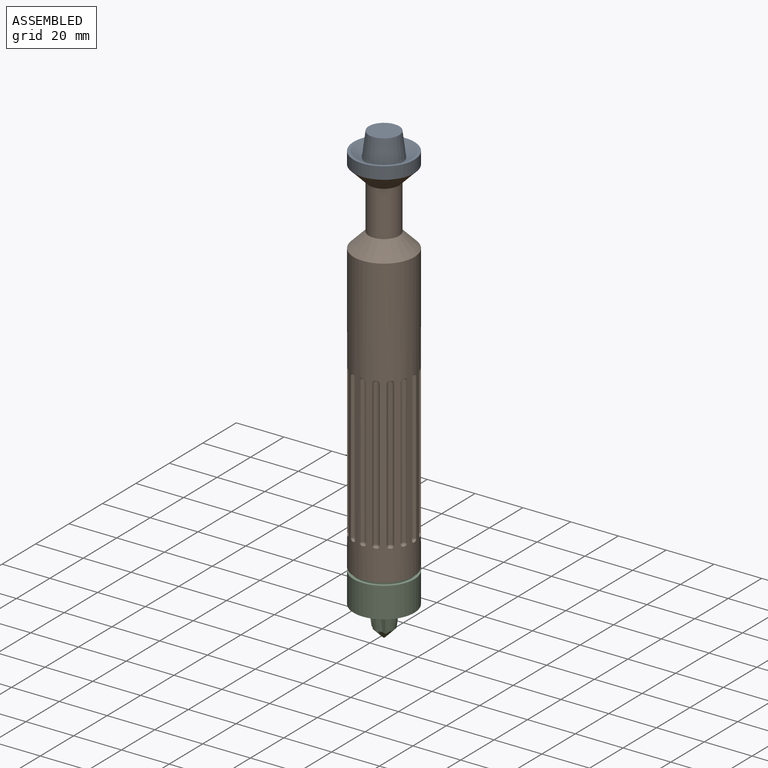
[diagram: assembled view]
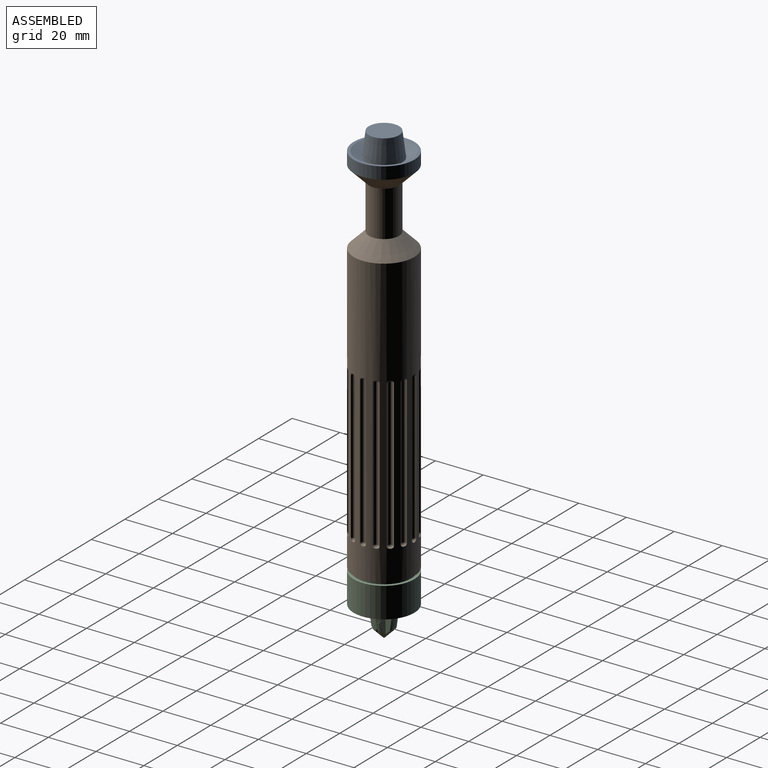
[diagram: assembled view, second angle]
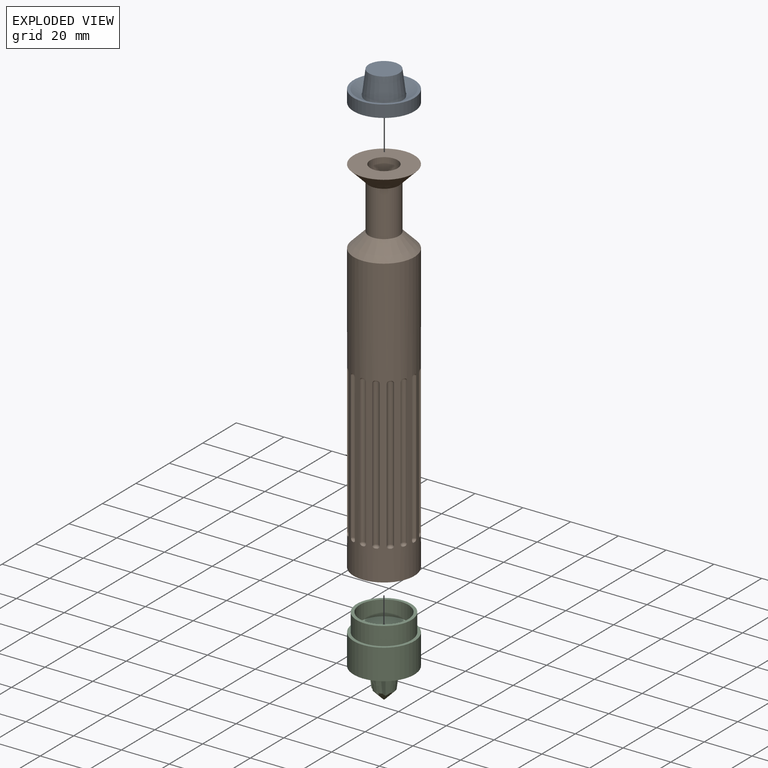
[diagram: exploded view]
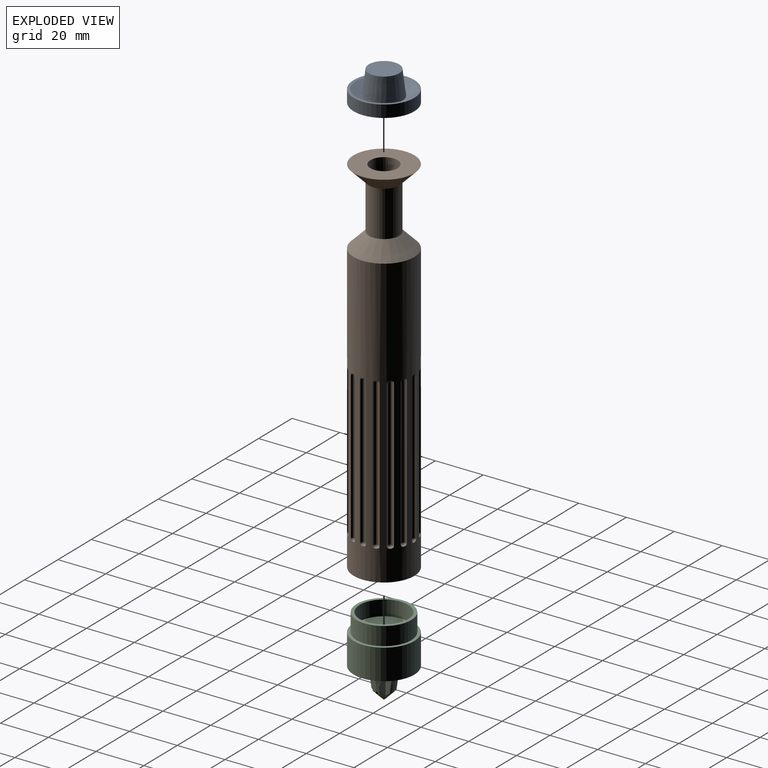
[diagram: exploded view, second angle]
ASSEMBLY  parts=3 mates=2
PART A: 8 faces, bbox 25.4x25.4x12.7 mm
  f0: cylinder r=12.7mm len=25.4mm, axis (0,0,-1), area 405.4mm2, adj f1,f2
  f1: plane 25.4x25.4mm, normal (0,0,-1), area 506.7mm2, adj f0
  f2: plane 25.4x25.4mm, normal (0,0,1), area 87.1mm2, adj f0,f6
  f3: cylinder r=7.75mm len=15.49mm, axis (0,0,1), area 12.4mm2, adj f4,f6
  f4: plane 15.49x15.49mm, normal (0,0,1), area 6.1mm2, adj f3,f7
  f5: plane 12.7x12.7mm, normal (0,0,1), area 126.7mm2, adj f7
  f6: cone r=7.75mm half-angle=59deg, axis (0,0,1), area 269.5mm2, adj f2,f3
  f7: cone r=6.35mm half-angle=7.1deg, axis (0,0,-1), area 449.4mm2, adj f4,f5
PART B: 89 faces, bbox 25.4x25.4x152.4 mm
  f0: cylinder r=12.7mm len=120.65mm, axis (0,0,1), area 7059.9mm2, adj f1,f5,f6,f7,f8,f9,f10,f11
  f1: plane 25.4x25.4mm, normal (0,0,1), area 140.6mm2, adj f0,f86
  f2: cylinder r=6.35mm len=19.05mm, axis (0,0,-1), area 760.1mm2, adj f4,f5
  f3: plane 25.4x25.4mm, normal (0,0,-1), area 404.1mm2, adj f4,f88
  f4: cone r=6.35mm half-angle=45deg, axis (0,0,-1), area 537.4mm2, adj f2,f3
  f5: cone r=12.7mm half-angle=45deg, axis (0,0,1), area 537.4mm2, adj f0,f2
  f6: cylinder r=1.27mm len=61.47mm, axis (0,0,1), area 237.4mm2, adj f0,f84,f85
  f7: plane 0.49x0.35mm, normal (0,0,1), area 0.1mm2, adj f0,f85
  f8: plane 0.49x0.35mm, normal (0,0,-1), area 0.1mm2, adj f0,f84
  f9: cylinder r=1.27mm len=61.47mm, axis (0,0,1), area 237.4mm2, adj f0,f54,f55
  f10: plane 0.51x0.25mm, normal (0,0,1), area 0.1mm2, adj f0,f55
  f11: plane 0.51x0.25mm, normal (0,0,-1), area 0.1mm2, adj f0,f54
  f12: cylinder r=1.27mm len=61.47mm, axis (0,0,1), area 237.4mm2, adj f0,f56,f57
  f13: plane 0.49x0.35mm, normal (0,0,1), area 0.1mm2, adj f0,f57
  f14: plane 0.49x0.35mm, normal (0,0,-1), area 0.1mm2, adj f0,f56
  f15: cylinder r=1.27mm len=61.47mm, axis (0,0,1), area 237.4mm2, adj f0,f58,f59
  f16: plane 0.43x0.43mm, normal (0,0,1), area 0.1mm2, adj f0,f59
  f17: plane 0.43x0.43mm, normal (0,0,-1), area 0.1mm2, adj f0,f58
  f18: cylinder r=1.27mm len=61.47mm, axis (0,0,1), area 237.4mm2, adj f0,f60,f61
  f19: plane 0.49x0.35mm, normal (0,0,1), area 0.1mm2, adj f0,f61
  f20: plane 0.49x0.35mm, normal (0,0,-1), area 0.1mm2, adj f0,f60
  f21: cylinder r=1.27mm len=61.47mm, axis (0,0,1), area 237.4mm2, adj f0,f62,f63
  f22: plane 0.51x0.25mm, normal (0,0,1), area 0.1mm2, adj f0,f63
  f23: plane 0.51x0.25mm, normal (0,0,-1), area 0.1mm2, adj f0,f62
  f24: cylinder r=1.27mm len=61.47mm, axis (0,0,1), area 237.4mm2, adj f0,f64,f65
  f25: plane 0.49x0.35mm, normal (0,0,1), area 0.1mm2, adj f0,f65
  f26: plane 0.49x0.35mm, normal (0,0,-1), area 0.1mm2, adj f0,f64
  f27: cylinder r=1.27mm len=61.47mm, axis (0,0,1), area 237.4mm2, adj f0,f66,f67
  f28: plane 0.43x0.43mm, normal (0,0,1), area 0.1mm2, adj f0,f67
  f29: plane 0.43x0.43mm, normal (0,0,-1), area 0.1mm2, adj f0,f66
  f30: cylinder r=1.27mm len=61.47mm, axis (0,0,1), area 237.4mm2, adj f0,f68,f69
  f31: plane 0.49x0.35mm, normal (0,0,1), area 0.1mm2, adj f0,f69
  f32: plane 0.49x0.35mm, normal (0,0,-1), area 0.1mm2, adj f0,f68
  f33: cylinder r=1.27mm len=61.47mm, axis (0,0,1), area 237.4mm2, adj f0,f70,f71
  f34: plane 0.51x0.25mm, normal (0,0,1), area 0.1mm2, adj f0,f71
  f35: plane 0.51x0.25mm, normal (0,0,-1), area 0.1mm2, adj f0,f70
  f36: cylinder r=1.27mm len=61.47mm, axis (0,0,1), area 237.4mm2, adj f0,f72,f73
  f37: plane 0.49x0.35mm, normal (0,0,1), area 0.1mm2, adj f0,f73
  f38: plane 0.49x0.35mm, normal (0,0,-1), area 0.1mm2, adj f0,f72
  f39: cylinder r=1.27mm len=61.47mm, axis (0,0,1), area 237.4mm2, adj f0,f74,f75
  f40: plane 0.43x0.43mm, normal (0,0,1), area 0.1mm2, adj f0,f75
  f41: plane 0.43x0.43mm, normal (0,0,-1), area 0.1mm2, adj f0,f74
  f42: cylinder r=1.27mm len=61.47mm, axis (0,0,1), area 237.4mm2, adj f0,f76,f77
  f43: plane 0.49x0.35mm, normal (0,0,1), area 0.1mm2, adj f0,f77
  f44: plane 0.49x0.35mm, normal (0,0,-1), area 0.1mm2, adj f0,f76
  f45: cylinder r=1.27mm len=61.47mm, axis (0,0,1), area 237.4mm2, adj f0,f78,f79
  f46: plane 0.51x0.25mm, normal (0,0,1), area 0.1mm2, adj f0,f79
  f47: plane 0.51x0.25mm, normal (0,0,-1), area 0.1mm2, adj f0,f78
  f48: cylinder r=1.27mm len=61.47mm, axis (0,0,1), area 237.4mm2, adj f0,f80,f81
  f49: plane 0.49x0.35mm, normal (0,0,1), area 0.1mm2, adj f0,f81
  f50: plane 0.49x0.35mm, normal (0,0,-1), area 0.1mm2, adj f0,f80
  f51: cylinder r=1.27mm len=61.47mm, axis (0,0,1), area 237.4mm2, adj f0,f82,f83
  f52: plane 0.43x0.43mm, normal (0,0,1), area 0.1mm2, adj f0,f83
  f53: plane 0.43x0.43mm, normal (0,0,-1), area 0.1mm2, adj f0,f82
  f54: torus R=0.25mm, axis (0,0,1), area 4.4mm2, adj f0,f9,f11
  f55: torus R=0.25mm, axis (0,0,1), area 4.4mm2, adj f0,f9,f10
  f56: torus R=0.25mm, axis (0,0,1), area 4.4mm2, adj f0,f12,f14
  f57: torus R=0.25mm, axis (0,0,1), area 4.4mm2, adj f0,f12,f13
  f58: torus R=0.25mm, axis (0,0,1), area 4.4mm2, adj f0,f15,f17
  f59: torus R=0.25mm, axis (0,0,1), area 4.4mm2, adj f0,f15,f16
  f60: torus R=0.25mm, axis (0,0,1), area 4.4mm2, adj f0,f18,f20
  f61: torus R=0.25mm, axis (0,0,1), area 4.4mm2, adj f0,f18,f19
  f62: torus R=0.25mm, axis (0,0,1), area 4.4mm2, adj f0,f21,f23
  f63: torus R=0.25mm, axis (0,0,1), area 4.4mm2, adj f0,f21,f22
  f64: torus R=0.25mm, axis (0,0,1), area 4.4mm2, adj f0,f24,f26
  f65: torus R=0.25mm, axis (0,0,1), area 4.4mm2, adj f0,f24,f25
  f66: torus R=0.25mm, axis (0,0,1), area 4.4mm2, adj f0,f27,f29
  f67: torus R=0.25mm, axis (0,0,1), area 4.4mm2, adj f0,f27,f28
  f68: torus R=0.25mm, axis (0,0,1), area 4.4mm2, adj f0,f30,f32
  f69: torus R=0.25mm, axis (0,0,1), area 4.4mm2, adj f0,f30,f31
  f70: torus R=0.25mm, axis (0,0,1), area 4.4mm2, adj f0,f33,f35
  f71: torus R=0.25mm, axis (0,0,1), area 4.4mm2, adj f0,f33,f34
  f72: torus R=0.25mm, axis (0,0,1), area 4.4mm2, adj f0,f36,f38
  f73: torus R=0.25mm, axis (0,0,1), area 4.4mm2, adj f0,f36,f37
  f74: torus R=0.25mm, axis (0,0,1), area 4.4mm2, adj f0,f39,f41
  f75: torus R=0.25mm, axis (0,0,1), area 4.4mm2, adj f0,f39,f40
  f76: torus R=0.25mm, axis (0,0,1), area 4.4mm2, adj f0,f42,f44
  f77: torus R=0.25mm, axis (0,0,1), area 4.4mm2, adj f0,f42,f43
  f78: torus R=0.25mm, axis (0,0,1), area 4.4mm2, adj f0,f45,f47
  f79: torus R=0.25mm, axis (0,0,1), area 4.4mm2, adj f0,f45,f46
  f80: torus R=0.25mm, axis (0,0,1), area 4.4mm2, adj f0,f48,f50
  f81: torus R=0.25mm, axis (0,0,1), area 4.4mm2, adj f0,f48,f49
  f82: torus R=0.25mm, axis (0,0,1), area 4.4mm2, adj f0,f51,f53
  f83: torus R=0.25mm, axis (0,0,1), area 4.4mm2, adj f0,f51,f52
  f84: torus R=0.25mm, axis (0,0,1), area 4.4mm2, adj f0,f6,f8
  f85: torus R=0.25mm, axis (0,0,1), area 4.4mm2, adj f0,f6,f7
  f86: cylinder r=10.79mm len=120.65mm, axis (0,0,1), area 8183.3mm2, adj f1,f87
  f87: plane 21.59x21.59mm, normal (0,0,1), area 263.5mm2, adj f86,f88
  f88: cylinder r=5.71mm len=31.75mm, axis (0,0,1), area 1140.1mm2, adj f3,f87
PART C: 35 faces, bbox 35.1x35.1x33.5 mm
  f0: cone r=3.81mm half-angle=7.6deg, axis (0,0,-1), area 89.7mm2, adj f4,f5,f18,f29,f30,f31,f32
  f1: cone r=3.81mm half-angle=7.6deg, axis (0,0,-1), area 89.8mm2, adj f4,f5,f17,f19,f20,f33,f34
  f2: cone r=3.81mm half-angle=7.6deg, axis (0,0,-1), area 89.7mm2, adj f4,f5,f15,f25,f26,f27,f28
  f3: cone r=3.81mm half-angle=7.6deg, axis (0,0,-1), area 89.7mm2, adj f4,f5,f16,f21,f22,f23,f24
  f4: cone r=0.25mm half-angle=45deg, axis (0,0,-1), area 67.5mm2, adj f0,f1,f2,f3,f6,f15,f16,f17
  f5: plane 17.78x17.78mm, normal (0,0,1), area 147.4mm2, adj f0,f1,f2,f3,f7,f19,f20,f21
  f6: plane 0.51x0.51mm, normal (0,0,1), area 0.2mm2, adj f4
  f7: cylinder r=8.89mm len=17.78mm, axis (0,0,-1), area 2.8mm2, adj f5,f10
  f8: plane 25.4x25.4mm, normal (0,0,-1), area 96.3mm2, adj f9,f11
  f9: cylinder r=12.7mm len=25.4mm, axis (0,0,-1), area 1013.4mm2, adj f8,f10
  f10: torus R=16mm, axis (0,0,1), area 496.5mm2, adj f7,f9
  f11: cylinder r=11.43mm len=22.86mm, axis (0,0,1), area 547.2mm2, adj f8,f12
  f12: plane 22.86x22.86mm, normal (0,0,-1), area 86.1mm2, adj f11,f13
  f13: cylinder r=10.16mm len=20.32mm, axis (0,0,-1), area 405.4mm2, adj f12,f14
  f14: plane 20.32x20.32mm, normal (0,0,-1), area 319.2mm2, adj f13,f15,f16,f17,f18
  f15: cylinder r=0.64mm len=23.75mm, axis (0,0,-1), area 91.6mm2, adj f2,f4,f14
  f16: cylinder r=0.64mm len=23.75mm, axis (0,0,-1), area 91.9mm2, adj f3,f4,f14
  f17: cylinder r=0.64mm len=23.69mm, axis (0,0,-1), area 91.6mm2, adj f1,f4,f14
  f18: cylinder r=0.64mm len=23.75mm, axis (0,0,-1), area 91.9mm2, adj f0,f4,f14
  f19: plane 10.57x2.85mm, normal (1,0,0), area 13mm2, adj f1,f5,f20
  f20: plane 16.68x2.8mm, normal (0,1,0), area 37.6mm2, adj f1,f4,f5,f19,f21
  f21: plane 16.68x2.79mm, normal (-1,0,0), area 37.6mm2, adj f3,f4,f5,f20,f22
  f22: plane 10.57x2.85mm, normal (0,-1,0), area 13mm2, adj f3,f5,f21
  f23: plane 10.57x2.85mm, normal (0,-1,0), area 13mm2, adj f3,f5,f24
  f24: plane 16.68x2.79mm, normal (1,0,0), area 37.6mm2, adj f3,f4,f5,f23,f25
  f25: plane 16.68x2.8mm, normal (0,1,0), area 37.6mm2, adj f2,f4,f5,f24,f26
  f26: plane 10.57x2.85mm, normal (-1,0,0), area 13mm2, adj f2,f5,f25
  f27: plane 10.57x2.85mm, normal (-1,0,0), area 13mm2, adj f2,f5,f28
  f28: plane 16.68x2.8mm, normal (0,-1,0), area 37.6mm2, adj f2,f4,f5,f27,f29
  f29: plane 16.68x2.79mm, normal (1,0,0), area 37.6mm2, adj f0,f4,f5,f28,f30
  f30: plane 10.57x2.85mm, normal (0,1,0), area 13mm2, adj f0,f5,f29
  f31: plane 10.57x2.85mm, normal (0,1,0), area 13mm2, adj f0,f5,f32
  f32: plane 16.68x2.79mm, normal (-1,0,0), area 37.6mm2, adj f0,f4,f5,f31,f33
  f33: plane 16.68x2.8mm, normal (0,-1,0), area 37.6mm2, adj f1,f4,f5,f32,f34
  f34: plane 10.57x2.85mm, normal (1,0,0), area 13mm2, adj f1,f5,f33
PLACE A t=(-6.22,-19.8,-133.71)mm
PLACE B rot(axis=(0.71,0.71,0),180deg) t=(-6.22,-19.8,-286.11)mm
PLACE C rot(axis=(0.71,-0.71,0),180deg) t=(-6.22,-19.8,-287.38)mm
MATE slider C.f13 <-> B.f86  axis (0,0,1) through (-6.22,-19.8,-286.11)mm
MATE slider B.f88 <-> A.f0  axis (0,0,-1) through (-6.22,-19.8,-133.71)mm
